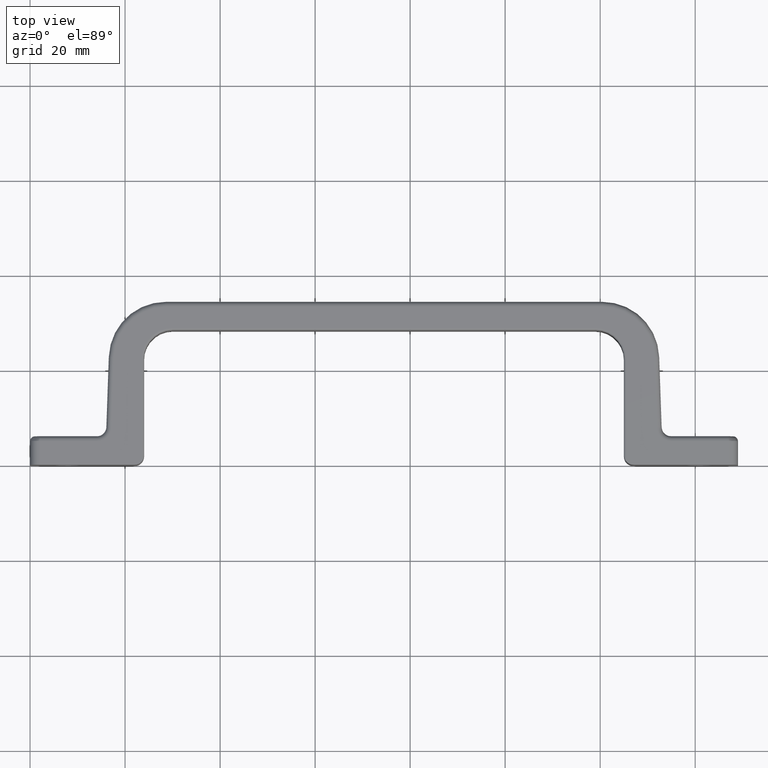
[diagram: clean part render]
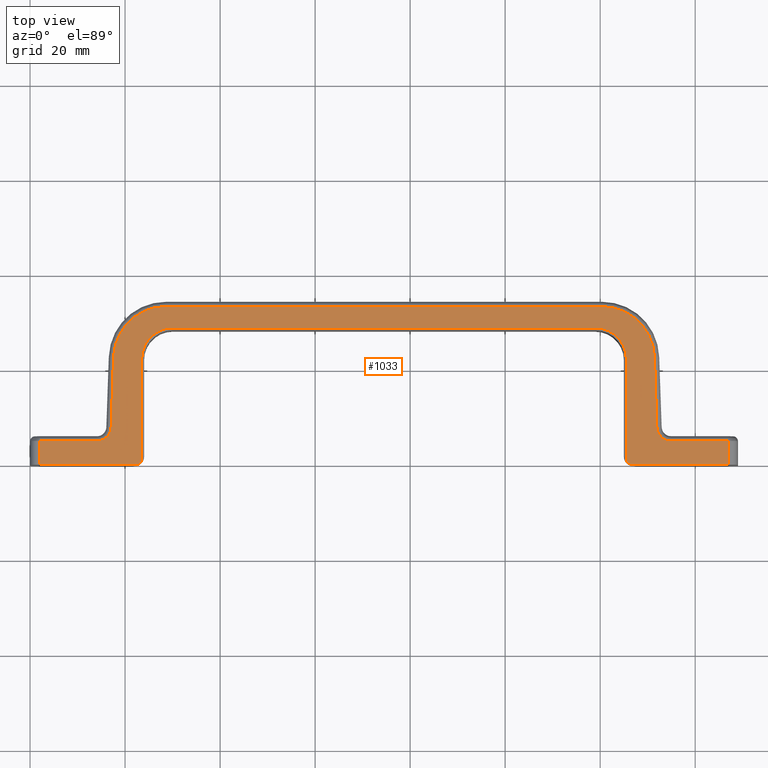
[diagram: same view with one face highlighted and labeled with its STEP entity id]
A machine part, top view. The second image highlights one B-rep face of the part: STEP entity #1033.
In plain terms, the highlighted planar face has unit normal (0, 0, 1).
Its self-contained STEP definition (entity closure, byte-faithful):
#31=PLANE('',#1173);
#52=LINE('',#1563,#118);
#58=LINE('',#1601,#124);
#60=LINE('',#1613,#126);
#76=LINE('',#1694,#142);
#77=LINE('',#1696,#143);
#81=LINE('',#1741,#147);
#82=LINE('',#1749,#148);
#91=LINE('',#1776,#157);
#92=LINE('',#1787,#158);
#94=LINE('',#1799,#160);
#112=LINE('',#1883,#178);
#114=LINE('',#1887,#180);
#118=VECTOR('',#1198,21.6228756555323);
#124=VECTOR('',#1244,14.7976072563576);
#126=VECTOR('',#1258,12.0686224503858);
#142=VECTOR('',#1332,20.);
#143=VECTOR('',#1335,5.);
#147=VECTOR('',#1359,21.6228756555323);
#148=VECTOR('',#1370,88.9999999999999);
#157=VECTOR('',#1403,91.8469538513972);
#158=VECTOR('',#1416,14.7976072563576);
#160=VECTOR('',#1430,12.0686224503858);
#178=VECTOR('',#1508,20.);
#180=VECTOR('',#1514,5.);
#283=FACE_OUTER_BOUND('',#355,.T.);
#355=EDGE_LOOP('',(#929,#930,#931,#932,#933,#934,#935,#936,#937,#938,#939,
#940,#941,#942,#943,#944,#945,#946,#947,#948));
#361=CIRCLE('',#1044,2.);
#365=CIRCLE('',#1050,6.5);
#373=CIRCLE('',#1063,11.);
#377=CIRCLE('',#1069,3.);
#399=CIRCLE('',#1108,2.);
#403=CIRCLE('',#1114,6.5);
#411=CIRCLE('',#1131,11.);
#415=CIRCLE('',#1137,3.);
#442=VERTEX_POINT('',#1545);
#443=VERTEX_POINT('',#1547);
#445=VERTEX_POINT('',#1562);
#447=VERTEX_POINT('',#1567);
#453=VERTEX_POINT('',#1589);
#455=VERTEX_POINT('',#1593);
#457=VERTEX_POINT('',#1598);
#459=VERTEX_POINT('',#1604);
#461=VERTEX_POINT('',#1610);
#479=VERTEX_POINT('',#1692);
#485=VERTEX_POINT('',#1709);
#486=VERTEX_POINT('',#1720);
#490=VERTEX_POINT('',#1739);
#492=VERTEX_POINT('',#1744);
#498=VERTEX_POINT('',#1774);
#500=VERTEX_POINT('',#1779);
#502=VERTEX_POINT('',#1785);
#504=VERTEX_POINT('',#1791);
#506=VERTEX_POINT('',#1797);
#524=VERTEX_POINT('',#1882);
#532=EDGE_CURVE('',#443,#442,#361,.T.);
#535=EDGE_CURVE('',#445,#443,#52,.T.);
#539=EDGE_CURVE('',#447,#445,#365,.T.);
#551=EDGE_CURVE('',#453,#455,#373,.T.);
#554=EDGE_CURVE('',#457,#453,#58,.T.);
#557=EDGE_CURVE('',#459,#457,#377,.T.);
#560=EDGE_CURVE('',#461,#459,#60,.T.);
#593=EDGE_CURVE('',#479,#442,#76,.T.);
#594=EDGE_CURVE('',#479,#461,#77,.T.);
#600=EDGE_CURVE('',#485,#486,#399,.T.);
#606=EDGE_CURVE('',#490,#485,#81,.T.);
#608=EDGE_CURVE('',#492,#490,#403,.T.);
#610=EDGE_CURVE('',#492,#447,#82,.T.);
#624=EDGE_CURVE('',#455,#498,#91,.T.);
#626=EDGE_CURVE('',#500,#498,#411,.T.);
#629=EDGE_CURVE('',#502,#500,#92,.T.);
#632=EDGE_CURVE('',#504,#502,#415,.T.);
#635=EDGE_CURVE('',#506,#504,#94,.T.);
#669=EDGE_CURVE('',#524,#486,#112,.T.);
#672=EDGE_CURVE('',#524,#506,#114,.T.);
#929=ORIENTED_EDGE('',*,*,#610,.T.);
#930=ORIENTED_EDGE('',*,*,#539,.T.);
#931=ORIENTED_EDGE('',*,*,#535,.T.);
#932=ORIENTED_EDGE('',*,*,#532,.T.);
#933=ORIENTED_EDGE('',*,*,#593,.F.);
#934=ORIENTED_EDGE('',*,*,#594,.T.);
#935=ORIENTED_EDGE('',*,*,#560,.T.);
#936=ORIENTED_EDGE('',*,*,#557,.T.);
#937=ORIENTED_EDGE('',*,*,#554,.T.);
#938=ORIENTED_EDGE('',*,*,#551,.T.);
#939=ORIENTED_EDGE('',*,*,#624,.T.);
#940=ORIENTED_EDGE('',*,*,#626,.F.);
#941=ORIENTED_EDGE('',*,*,#629,.F.);
#942=ORIENTED_EDGE('',*,*,#632,.F.);
#943=ORIENTED_EDGE('',*,*,#635,.F.);
#944=ORIENTED_EDGE('',*,*,#672,.F.);
#945=ORIENTED_EDGE('',*,*,#669,.T.);
#946=ORIENTED_EDGE('',*,*,#600,.F.);
#947=ORIENTED_EDGE('',*,*,#606,.F.);
#948=ORIENTED_EDGE('',*,*,#608,.F.);
#1033=ADVANCED_FACE('',(#283),#31,.T.);
#1044=AXIS2_PLACEMENT_3D('',#1548,#1193,#1194);
#1050=AXIS2_PLACEMENT_3D('',#1570,#1207,#1208);
#1063=AXIS2_PLACEMENT_3D('',#1595,#1237,#1238);
#1069=AXIS2_PLACEMENT_3D('',#1607,#1251,#1252);
#1108=AXIS2_PLACEMENT_3D('',#1721,#1349,#1350);
#1114=AXIS2_PLACEMENT_3D('',#1746,#1364,#1365);
#1131=AXIS2_PLACEMENT_3D('',#1781,#1408,#1409);
#1137=AXIS2_PLACEMENT_3D('',#1793,#1422,#1423);
#1173=AXIS2_PLACEMENT_3D('',#1888,#1515,#1516);
#1193=DIRECTION('center_axis',(0.,0.,1.));
#1194=DIRECTION('ref_axis',(-0.707106781186548,-0.707106781186547,0.));
#1198=DIRECTION('',(-7.96572573722086E-16,-1.,0.));
#1207=DIRECTION('center_axis',(0.,0.,-1.));
#1208=DIRECTION('ref_axis',(0.707106781186548,0.707106781186548,0.));
#1237=DIRECTION('center_axis',(0.,0.,1.));
#1238=DIRECTION('ref_axis',(0.694658370458997,0.719339800338651,0.));
#1244=DIRECTION('',(-0.0348994967025004,0.999390827019096,0.));
#1251=DIRECTION('center_axis',(0.,0.,-1.));
#1252=DIRECTION('ref_axis',(-0.694658370458997,-0.719339800338651,0.));
#1258=DIRECTION('',(-1.,2.77555756156289E-16,0.));
#1332=DIRECTION('',(-1.,-2.71170936169723E-31,0.));
#1335=DIRECTION('',(-1.04083408558608E-16,1.,0.));
#1349=DIRECTION('center_axis',(0.,0.,-1.));
#1350=DIRECTION('ref_axis',(0.707106781186548,-0.707106781186547,0.));
#1359=DIRECTION('',(7.96572573722086E-16,-1.,0.));
#1364=DIRECTION('center_axis',(0.,0.,1.));
#1365=DIRECTION('ref_axis',(-0.707106781186548,0.707106781186548,0.));
#1370=DIRECTION('',(1.,0.,0.));
#1403=DIRECTION('',(-1.,9.67020007149223E-17,0.));
#1408=DIRECTION('center_axis',(0.,0.,-1.));
#1409=DIRECTION('ref_axis',(-0.694658370458997,0.719339800338651,0.));
#1416=DIRECTION('',(0.0348994967025004,0.999390827019096,0.));
#1422=DIRECTION('center_axis',(0.,0.,1.));
#1423=DIRECTION('ref_axis',(0.694658370458997,-0.719339800338651,0.));
#1430=DIRECTION('',(1.,2.77555756156289E-16,0.));
#1508=DIRECTION('',(1.,-2.71170936169723E-31,0.));
#1514=DIRECTION('',(1.04083408558608E-16,1.,0.));
#1515=DIRECTION('center_axis',(0.,0.,1.));
#1516=DIRECTION('ref_axis',(1.,0.,0.));
#1545=CARTESIAN_POINT('',(127.,-5.9657605957339E-30,9.));
#1547=CARTESIAN_POINT('',(125.5,0.677124344467709,9.));
#1548=CARTESIAN_POINT('Origin',(127.,2.,9.));
#1562=CARTESIAN_POINT('',(125.5,22.3,9.));
#1563=CARTESIAN_POINT('',(125.5,10.4426225756365,9.));
#1567=CARTESIAN_POINT('',(119.,28.8,9.));
#1570=CARTESIAN_POINT('Origin',(119.,22.3,9.));
#1589=CARTESIAN_POINT('',(131.416776022909,22.6838944637275,9.));
#1593=CARTESIAN_POINT('',(120.423476925699,33.3,9.));
#1595=CARTESIAN_POINT('Origin',(120.423476925699,22.3,9.));
#1598=CARTESIAN_POINT('',(131.933205068557,7.8953015098925,9.));
#1601=CARTESIAN_POINT('',(131.438269176768,22.0684110659522,9.));
#1604=CARTESIAN_POINT('',(134.931377549614,5.,9.));
#1607=CARTESIAN_POINT('Origin',(134.931377549614,8.00000000000001,9.));
#1610=CARTESIAN_POINT('',(147.,5.,9.));
#1613=CARTESIAN_POINT('',(124.101730996142,5.00000000000001,9.));
#1692=CARTESIAN_POINT('',(147.,-5.42341872339445E-31,9.));
#1694=CARTESIAN_POINT('',(125.,-6.50810246807334E-30,9.));
#1696=CARTESIAN_POINT('',(147.,13.4426225756365,9.));
#1709=CARTESIAN_POINT('',(23.5,0.677124344467709,9.));
#1720=CARTESIAN_POINT('',(22.,-5.9657605957339E-30,9.));
#1721=CARTESIAN_POINT('Origin',(22.,2.,9.));
#1739=CARTESIAN_POINT('',(23.5,22.3,9.));
#1741=CARTESIAN_POINT('',(23.5,10.4426225756365,9.));
#1744=CARTESIAN_POINT('',(30.,28.8,9.));
#1746=CARTESIAN_POINT('Origin',(30.,22.3,9.));
#1749=CARTESIAN_POINT('',(117.101730996142,28.8,9.));
#1774=CARTESIAN_POINT('',(28.5765230743013,33.3,9.));
#1776=CARTESIAN_POINT('',(94.851730996142,33.3,9.));
#1779=CARTESIAN_POINT('',(17.5832239770913,22.6838944637275,9.));
#1781=CARTESIAN_POINT('Origin',(28.5765230743013,22.3,9.));
#1785=CARTESIAN_POINT('',(17.0667949314431,7.8953015098925,9.));
#1787=CARTESIAN_POINT('',(17.5617308232316,22.0684110659522,9.));
#1791=CARTESIAN_POINT('',(14.0686224503859,5.,9.));
#1793=CARTESIAN_POINT('Origin',(14.0686224503859,8.00000000000001,9.));
#1797=CARTESIAN_POINT('',(2.,5.,9.));
#1799=CARTESIAN_POINT('',(24.8982690038579,5.00000000000001,9.));
#1882=CARTESIAN_POINT('',(2.,-5.42341872339445E-31,9.));
#1883=CARTESIAN_POINT('',(24.,-6.50810246807334E-30,9.));
#1887=CARTESIAN_POINT('',(2.,13.4426225756365,9.));
#1888=CARTESIAN_POINT('Origin',(33.7965380077159,20.8852451512731,9.));